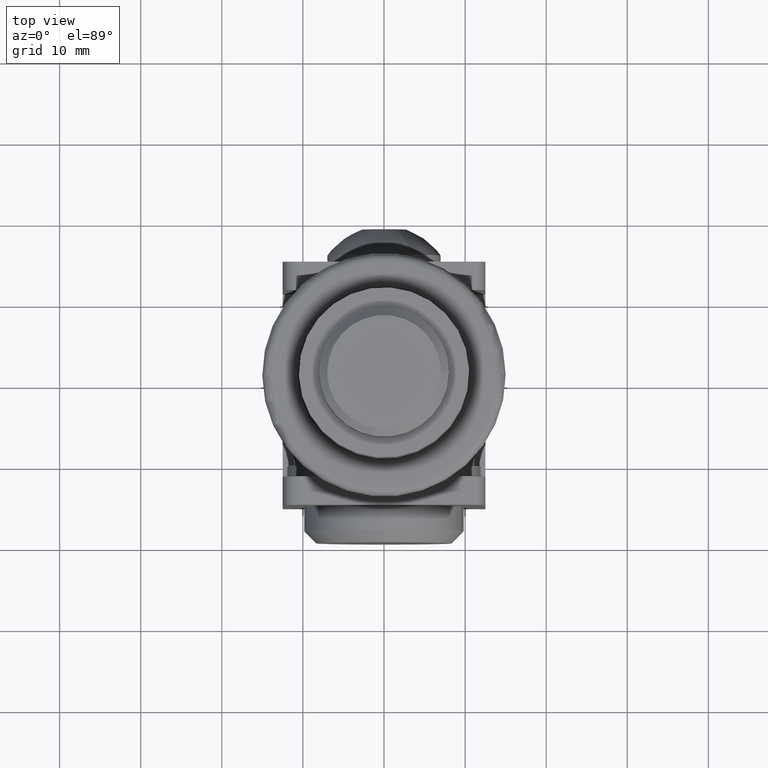
[diagram: clean part render]
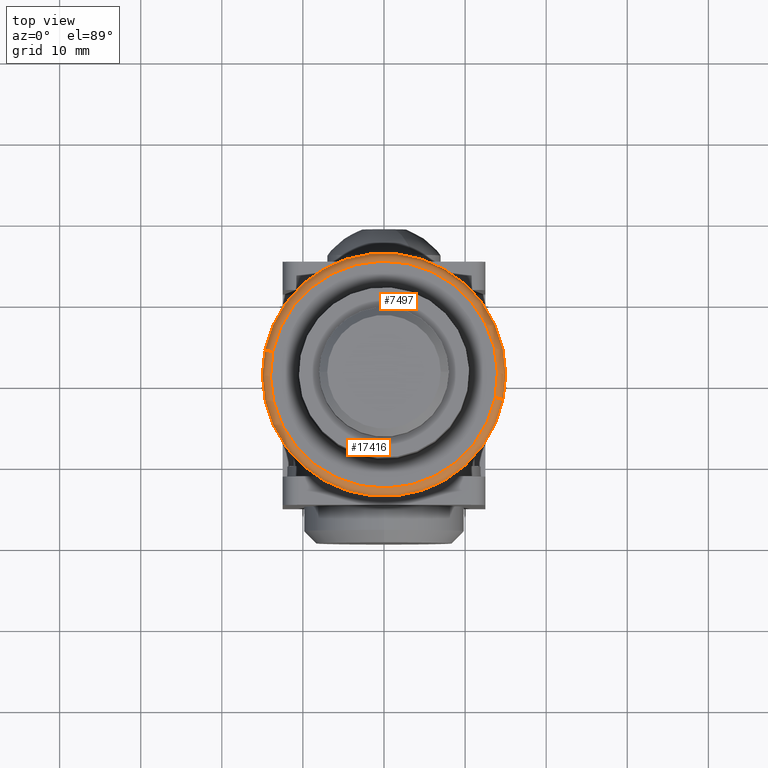
[diagram: same view with one multi-face feature highlighted, each face labeled with its STEP entity id]
A machine part, top view. The highlighted faces form ONE feature: a constant-radius fillet chain: 2 tangent blend faces with common blend radius 1 mm. The faces share edges in the B-rep.
Their STEP definitions:
[1] entity #7497 (Torus):
#204 = CARTESIAN_POINT ( 'NONE',  ( 1.775737858763662015E-15, 4.499999999999999112, -13.99999999999999822 ) ) ;
#856 = DIRECTION ( 'NONE',  ( 1.000000000000000000, -0.000000000000000000, 1.224646799147353207E-16 ) ) ;
#1876 = CIRCLE ( 'NONE', #4328, 15.00000000000000000 ) ;
#2222 = DIRECTION ( 'NONE',  ( 0.000000000000000000, 0.000000000000000000, 1.000000000000000000 ) ) ;
#3007 = EDGE_LOOP ( 'NONE', ( #11508, #10458, #14950, #7360 ) ) ;
#3179 = CIRCLE ( 'NONE', #7604, 1.000000000000000888 ) ;
#3641 = CARTESIAN_POINT ( 'NONE',  ( 0.000000000000000000, 4.499999999999999112, 0.000000000000000000 ) ) ;
#3960 = DIRECTION ( 'NONE',  ( -0.000000000000000000, -1.000000000000000000, -0.000000000000000000 ) ) ;
#3977 = EDGE_CURVE ( 'NONE', #17139, #5063, #3179, .T. ) ;
#4328 = AXIS2_PLACEMENT_3D ( 'NONE', #10724, #3960, #9490 ) ;
#4777 = DIRECTION ( 'NONE',  ( 0.000000000000000000, 1.000000000000000000, 0.000000000000000000 ) ) ;
#4823 = EDGE_CURVE ( 'NONE', #15267, #11005, #8494, .T. ) ;
#5063 = VERTEX_POINT ( 'NONE', #6705 ) ;
#5428 = DIRECTION ( 'NONE',  ( 0.000000000000000000, 1.000000000000000000, 0.000000000000000000 ) ) ;
#6705 = CARTESIAN_POINT ( 'NONE',  ( 0.000000000000000000, 4.499999999999999112, 13.99999999999999822 ) ) ;
#6833 = DIRECTION ( 'NONE',  ( 0.000000000000000000, 0.000000000000000000, 1.000000000000000000 ) ) ;
#7360 = ORIENTED_EDGE ( 'NONE', *, *, #3977, .F. ) ;
#7497 = ADVANCED_FACE ( 'NONE', ( #13701 ), #17052, .T. ) ;
#7541 = DIRECTION ( 'NONE',  ( 1.224646799147351482E-16, 0.000000000000000000, -1.000000000000000000 ) ) ;
#7604 = AXIS2_PLACEMENT_3D ( 'NONE', #11637, #17100, #2222 ) ;
#8494 = CIRCLE ( 'NONE', #15597, 1.000000000000000888 ) ;
#8769 = CARTESIAN_POINT ( 'NONE',  ( 0.000000000000000000, 3.499999999999998668, 0.000000000000000000 ) ) ;
#8770 = CARTESIAN_POINT ( 'NONE',  ( 1.714505518806294441E-15, 3.499999999999998668, -13.99999999999999822 ) ) ;
#8776 = EDGE_CURVE ( 'NONE', #5063, #11005, #16412, .T. ) ;
#9115 = CARTESIAN_POINT ( 'NONE',  ( 0.000000000000000000, 3.499999999999998668, -15.00000000000000000 ) ) ;
#9490 = DIRECTION ( 'NONE',  ( 0.000000000000000000, 0.000000000000000000, 1.000000000000000000 ) ) ;
#10458 = ORIENTED_EDGE ( 'NONE', *, *, #4823, .T. ) ;
#10724 = CARTESIAN_POINT ( 'NONE',  ( 0.000000000000000000, 3.499999999999998668, 0.000000000000000000 ) ) ;
#11005 = VERTEX_POINT ( 'NONE', #204 ) ;
#11508 = ORIENTED_EDGE ( 'NONE', *, *, #14799, .F. ) ;
#11637 = CARTESIAN_POINT ( 'NONE',  ( 0.000000000000000000, 3.499999999999998668, 13.99999999999999822 ) ) ;
#12375 = AXIS2_PLACEMENT_3D ( 'NONE', #3641, #5428, #6833 ) ;
#13701 = FACE_OUTER_BOUND ( 'NONE', #3007, .T. ) ;
#14169 = DIRECTION ( 'NONE',  ( 0.000000000000000000, 0.000000000000000000, 1.000000000000000000 ) ) ;
#14395 = CARTESIAN_POINT ( 'NONE',  ( 1.836970198721029589E-15, 3.499999999999998668, 15.00000000000000000 ) ) ;
#14799 = EDGE_CURVE ( 'NONE', #15267, #17139, #1876, .T. ) ;
#14950 = ORIENTED_EDGE ( 'NONE', *, *, #8776, .F. ) ;
#15267 = VERTEX_POINT ( 'NONE', #9115 ) ;
#15597 = AXIS2_PLACEMENT_3D ( 'NONE', #8770, #856, #7541 ) ;
#16412 = CIRCLE ( 'NONE', #12375, 13.99999999999999822 ) ;
#16629 = AXIS2_PLACEMENT_3D ( 'NONE', #8769, #4777, #14169 ) ;
#17052 = TOROIDAL_SURFACE ( 'NONE', #16629, 13.99999999999999822, 1.000000000000000000 ) ;
#17100 = DIRECTION ( 'NONE',  ( -1.000000000000000000, 0.000000000000000000, 0.000000000000000000 ) ) ;
#17139 = VERTEX_POINT ( 'NONE', #14395 ) ;
[2] entity #17416 (Torus):
#204 = CARTESIAN_POINT ( 'NONE',  ( 1.775737858763662015E-15, 4.499999999999999112, -13.99999999999999822 ) ) ;
#856 = DIRECTION ( 'NONE',  ( 1.000000000000000000, -0.000000000000000000, 1.224646799147353207E-16 ) ) ;
#1218 = AXIS2_PLACEMENT_3D ( 'NONE', #1585, #11007, #4314 ) ;
#1585 = CARTESIAN_POINT ( 'NONE',  ( 0.000000000000000000, 4.499999999999999112, 0.000000000000000000 ) ) ;
#2222 = DIRECTION ( 'NONE',  ( 0.000000000000000000, 0.000000000000000000, 1.000000000000000000 ) ) ;
#2689 = DIRECTION ( 'NONE',  ( 0.000000000000000000, 1.000000000000000000, 0.000000000000000000 ) ) ;
#3179 = CIRCLE ( 'NONE', #7604, 1.000000000000000888 ) ;
#3977 = EDGE_CURVE ( 'NONE', #17139, #5063, #3179, .T. ) ;
#4314 = DIRECTION ( 'NONE',  ( 0.000000000000000000, 0.000000000000000000, 1.000000000000000000 ) ) ;
#4315 = EDGE_CURVE ( 'NONE', #17139, #15267, #13915, .T. ) ;
#4415 = CIRCLE ( 'NONE', #1218, 13.99999999999999822 ) ;
#4823 = EDGE_CURVE ( 'NONE', #15267, #11005, #8494, .T. ) ;
#5063 = VERTEX_POINT ( 'NONE', #6705 ) ;
#6705 = CARTESIAN_POINT ( 'NONE',  ( 0.000000000000000000, 4.499999999999999112, 13.99999999999999822 ) ) ;
#7541 = DIRECTION ( 'NONE',  ( 1.224646799147351482E-16, 0.000000000000000000, -1.000000000000000000 ) ) ;
#7604 = AXIS2_PLACEMENT_3D ( 'NONE', #11637, #17100, #2222 ) ;
#7987 = DIRECTION ( 'NONE',  ( 0.000000000000000000, 0.000000000000000000, 1.000000000000000000 ) ) ;
#8494 = CIRCLE ( 'NONE', #15597, 1.000000000000000888 ) ;
#8770 = CARTESIAN_POINT ( 'NONE',  ( 1.714505518806294441E-15, 3.499999999999998668, -13.99999999999999822 ) ) ;
#9115 = CARTESIAN_POINT ( 'NONE',  ( 0.000000000000000000, 3.499999999999998668, -15.00000000000000000 ) ) ;
#9126 = ORIENTED_EDGE ( 'NONE', *, *, #3977, .T. ) ;
#9208 = DIRECTION ( 'NONE',  ( -0.000000000000000000, -1.000000000000000000, -0.000000000000000000 ) ) ;
#9430 = FACE_OUTER_BOUND ( 'NONE', #14222, .T. ) ;
#11005 = VERTEX_POINT ( 'NONE', #204 ) ;
#11007 = DIRECTION ( 'NONE',  ( 0.000000000000000000, 1.000000000000000000, 0.000000000000000000 ) ) ;
#11032 = EDGE_CURVE ( 'NONE', #11005, #5063, #4415, .T. ) ;
#11637 = CARTESIAN_POINT ( 'NONE',  ( 0.000000000000000000, 3.499999999999998668, 13.99999999999999822 ) ) ;
#12117 = AXIS2_PLACEMENT_3D ( 'NONE', #16030, #9208, #7987 ) ;
#12164 = ORIENTED_EDGE ( 'NONE', *, *, #4315, .F. ) ;
#12171 = DIRECTION ( 'NONE',  ( 0.000000000000000000, 0.000000000000000000, 1.000000000000000000 ) ) ;
#13915 = CIRCLE ( 'NONE', #12117, 15.00000000000000000 ) ;
#14222 = EDGE_LOOP ( 'NONE', ( #14933, #12164, #9126, #14764 ) ) ;
#14395 = CARTESIAN_POINT ( 'NONE',  ( 1.836970198721029589E-15, 3.499999999999998668, 15.00000000000000000 ) ) ;
#14764 = ORIENTED_EDGE ( 'NONE', *, *, #11032, .F. ) ;
#14933 = ORIENTED_EDGE ( 'NONE', *, *, #4823, .F. ) ;
#14989 = CARTESIAN_POINT ( 'NONE',  ( 0.000000000000000000, 3.499999999999998668, 0.000000000000000000 ) ) ;
#15267 = VERTEX_POINT ( 'NONE', #9115 ) ;
#15597 = AXIS2_PLACEMENT_3D ( 'NONE', #8770, #856, #7541 ) ;
#15825 = AXIS2_PLACEMENT_3D ( 'NONE', #14989, #2689, #12171 ) ;
#16030 = CARTESIAN_POINT ( 'NONE',  ( 0.000000000000000000, 3.499999999999998668, 0.000000000000000000 ) ) ;
#16584 = TOROIDAL_SURFACE ( 'NONE', #15825, 13.99999999999999822, 1.000000000000000000 ) ;
#17100 = DIRECTION ( 'NONE',  ( -1.000000000000000000, 0.000000000000000000, 0.000000000000000000 ) ) ;
#17139 = VERTEX_POINT ( 'NONE', #14395 ) ;
#17416 = ADVANCED_FACE ( 'NONE', ( #9430 ), #16584, .T. ) ;